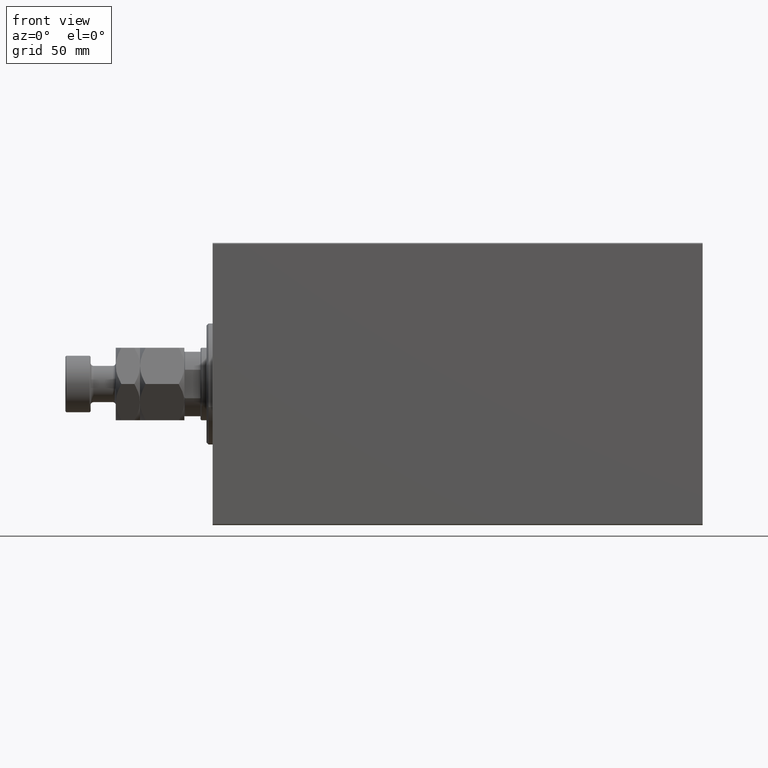
[diagram: clean part render]
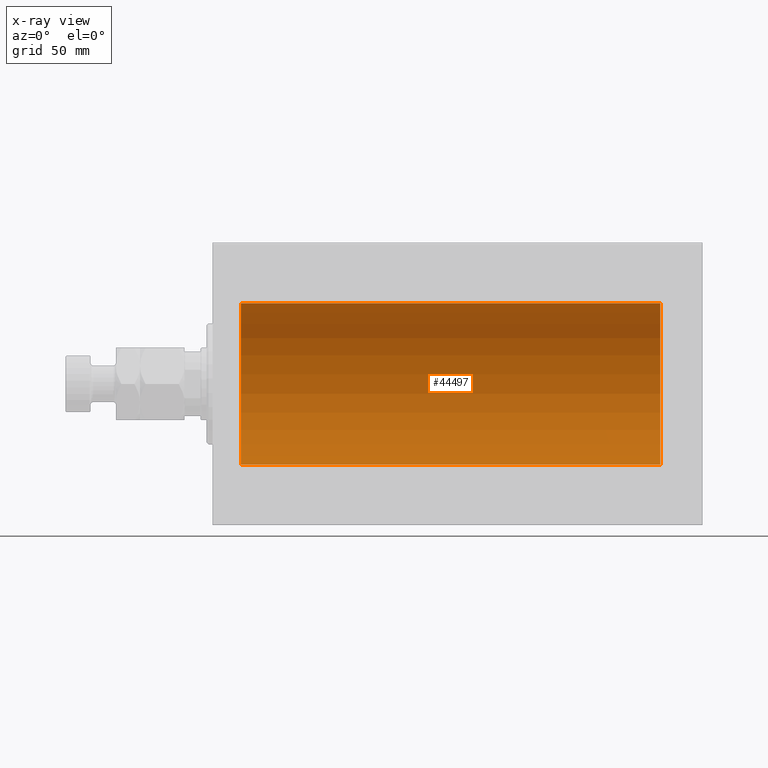
[diagram: x-ray — body ghosted, one internal face saturated and labeled with its STEP entity id]
A machine part, front view, then the same camera in x-ray: the body is ghosted and one INTERNAL B-rep face — a face not visible from any outside direction — is saturated and labeled: STEP entity #44497.
In plain terms, the highlighted cylindrical surface (partial cylindrical patch) has radius 40 mm, axis along (-1, -0, -0).
Its self-contained STEP definition (entity closure, byte-faithful):
#52 = CARTESIAN_POINT ( 'NONE',  ( 222.0000000000000000, 4.898587196589413026E-15, -40.00000000000000000 ) ) ;
#374 = DIRECTION ( 'NONE',  ( -1.000000000000000000, -0.000000000000000000, -0.000000000000000000 ) ) ;
#829 = CYLINDRICAL_SURFACE ( 'NONE', #32655, 40.00000000000000000 ) ;
#1351 = CARTESIAN_POINT ( 'NONE',  ( 13.99999999999998401, 4.898587196589413026E-15, -40.00000000000000000 ) ) ;
#4614 = VECTOR ( 'NONE', #14103, 1000.000000000000000 ) ;
#5304 = DIRECTION ( 'NONE',  ( -1.000000000000000000, 0.000000000000000000, 0.000000000000000000 ) ) ;
#5946 = ORIENTED_EDGE ( 'NONE', *, *, #32006, .F. ) ;
#10987 = LINE ( 'NONE', #45307, #39558 ) ;
#11312 = AXIS2_PLACEMENT_3D ( 'NONE', #20047, #5304, #34083 ) ;
#11574 = CARTESIAN_POINT ( 'NONE',  ( 13.99999999999998401, 0.000000000000000000, 40.00000000000000000 ) ) ;
#12220 = VERTEX_POINT ( 'NONE', #24710 ) ;
#13772 = DIRECTION ( 'NONE',  ( -1.000000000000000000, -0.000000000000000000, -0.000000000000000000 ) ) ;
#14103 = DIRECTION ( 'NONE',  ( -1.000000000000000000, -0.000000000000000000, -0.000000000000000000 ) ) ;
#17263 = ORIENTED_EDGE ( 'NONE', *, *, #36266, .T. ) ;
#18110 = DIRECTION ( 'NONE',  ( 0.000000000000000000, 0.000000000000000000, 1.000000000000000000 ) ) ;
#18422 = EDGE_LOOP ( 'NONE', ( #5946, #42234, #22997, #17263 ) ) ;
#19279 = EDGE_CURVE ( 'NONE', #12220, #25870, #10987, .T. ) ;
#20047 = CARTESIAN_POINT ( 'NONE',  ( 222.0000000000000000, 0.000000000000000000, 0.000000000000000000 ) ) ;
#20779 = DIRECTION ( 'NONE',  ( -1.000000000000000000, 0.000000000000000000, 0.000000000000000000 ) ) ;
#22997 = ORIENTED_EDGE ( 'NONE', *, *, #19279, .T. ) ;
#24710 = CARTESIAN_POINT ( 'NONE',  ( 222.0000000000000000, 0.000000000000000000, 40.00000000000000000 ) ) ;
#24855 = VERTEX_POINT ( 'NONE', #38057 ) ;
#25870 = VERTEX_POINT ( 'NONE', #11574 ) ;
#30913 = DIRECTION ( 'NONE',  ( 0.000000000000000000, 0.000000000000000000, 1.000000000000000000 ) ) ;
#31106 = CIRCLE ( 'NONE', #41382, 40.00000000000000000 ) ;
#31931 = CARTESIAN_POINT ( 'NONE',  ( 222.0000000000000000, 0.000000000000000000, 0.000000000000000000 ) ) ;
#32006 = EDGE_CURVE ( 'NONE', #24855, #45251, #36197, .T. ) ;
#32655 = AXIS2_PLACEMENT_3D ( 'NONE', #31931, #374, #18110 ) ;
#34083 = DIRECTION ( 'NONE',  ( 0.000000000000000000, 0.000000000000000000, 1.000000000000000000 ) ) ;
#34842 = CIRCLE ( 'NONE', #11312, 40.00000000000000000 ) ;
#35609 = FACE_OUTER_BOUND ( 'NONE', #18422, .T. ) ;
#36197 = LINE ( 'NONE', #52, #4614 ) ;
#36266 = EDGE_CURVE ( 'NONE', #25870, #45251, #31106, .T. ) ;
#38057 = CARTESIAN_POINT ( 'NONE',  ( 222.0000000000000000, 4.898587196589413026E-15, -40.00000000000000000 ) ) ;
#38266 = CARTESIAN_POINT ( 'NONE',  ( 13.99999999999998401, 0.000000000000000000, 0.000000000000000000 ) ) ;
#39558 = VECTOR ( 'NONE', #13772, 1000.000000000000000 ) ;
#41382 = AXIS2_PLACEMENT_3D ( 'NONE', #38266, #20779, #30913 ) ;
#42234 = ORIENTED_EDGE ( 'NONE', *, *, #44854, .F. ) ;
#44497 = ADVANCED_FACE ( 'NONE', ( #35609 ), #829, .F. ) ;
#44854 = EDGE_CURVE ( 'NONE', #12220, #24855, #34842, .T. ) ;
#45251 = VERTEX_POINT ( 'NONE', #1351 ) ;
#45307 = CARTESIAN_POINT ( 'NONE',  ( 222.0000000000000000, 0.000000000000000000, 40.00000000000000000 ) ) ;